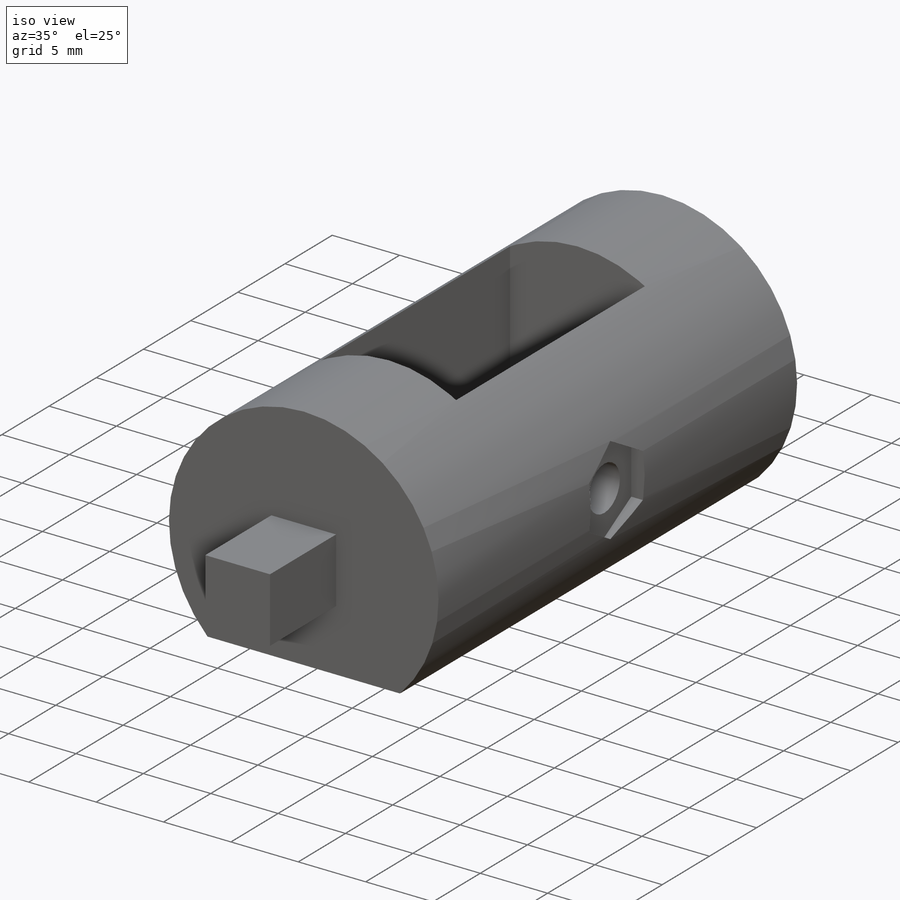
[diagram: iso view]
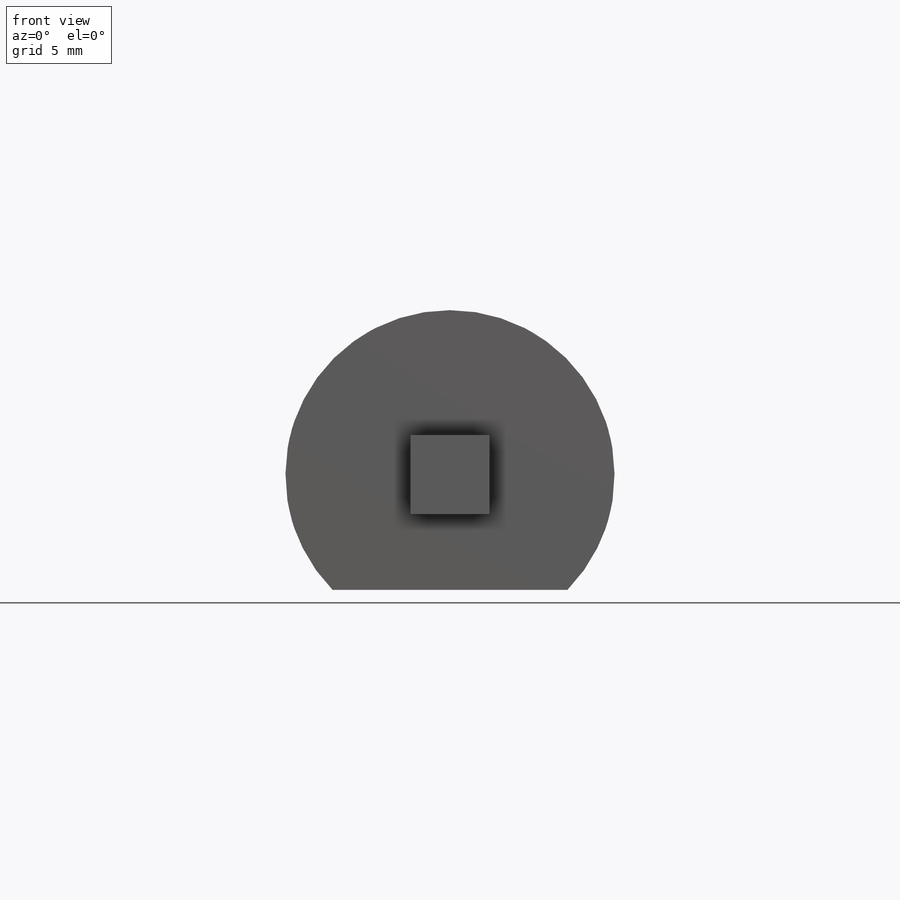
[diagram: front view]
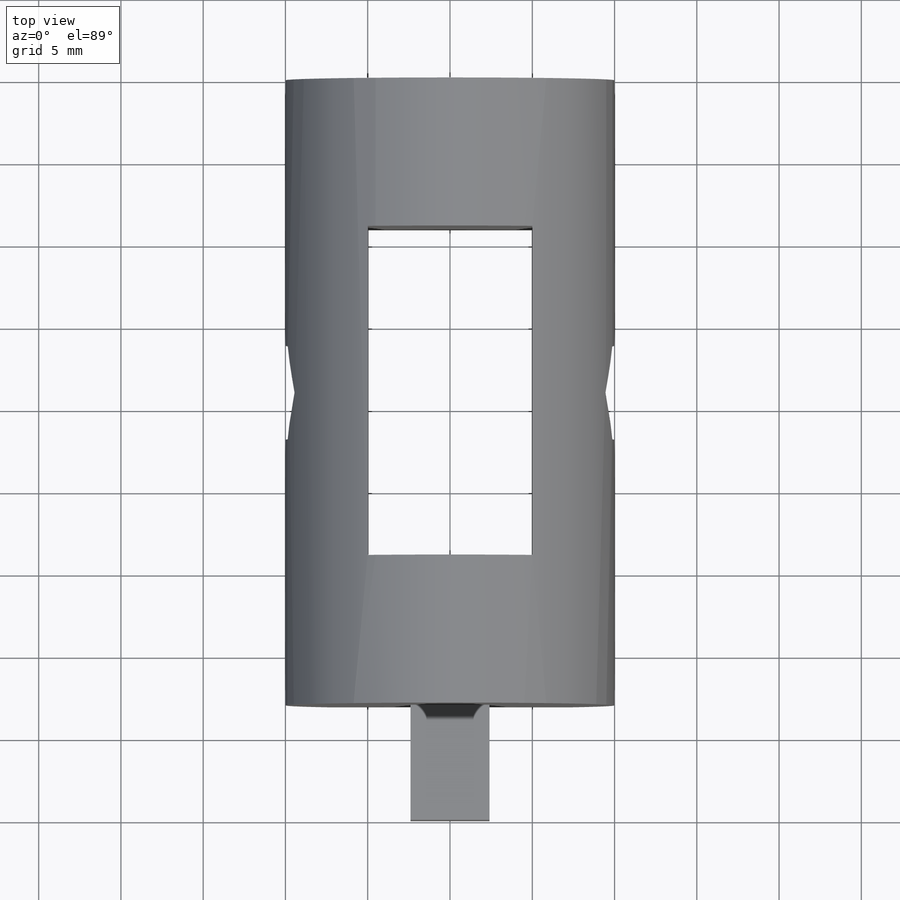
[diagram: top view]
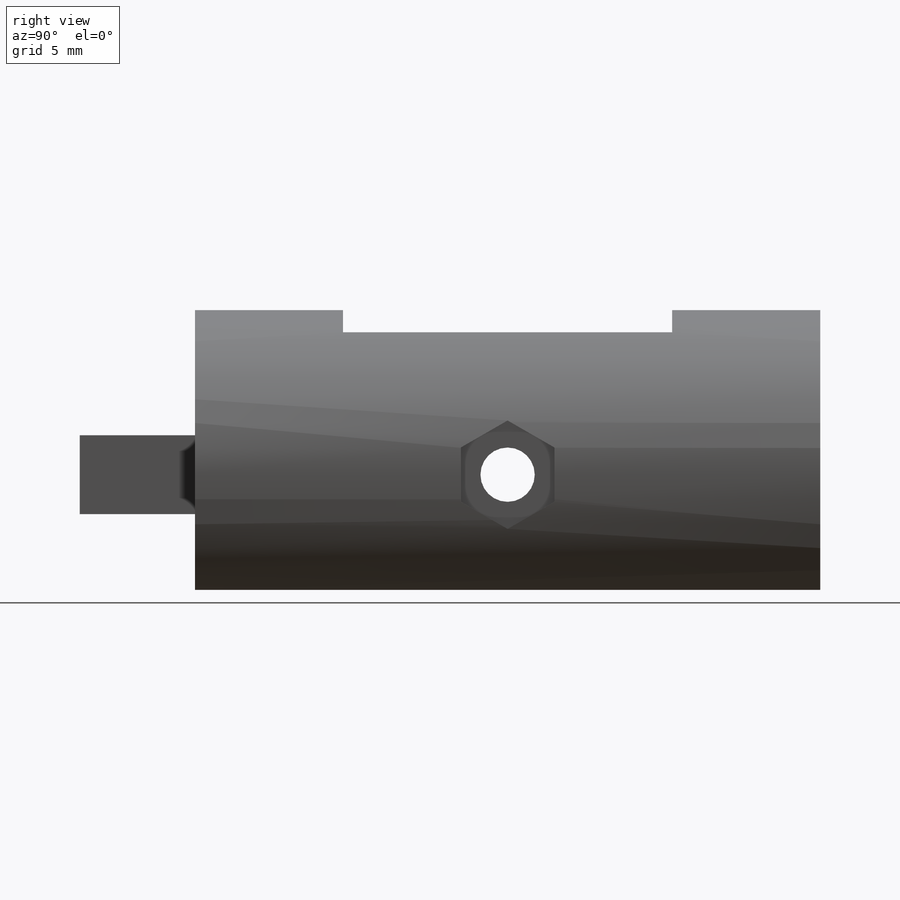
[diagram: right view]
SOLIDWORKS PART (.sldprt)
format: sldprt  version: not decoded by parser v0  size: 243,200 bytes
history: native  units: mm
features: sketch x8, cut_extrude x6, plane x3, extrude x2, material x1 (+9 scaffold rows collapsed)
feature tree (29):
  scaffold x9  (default folders/planes/origin — collapsed)
  material  "Material <nicht festgelegt>"
  plane  "Ebene vorne"
  plane  "Ebene oben"
  plane  "Ebene rechts"
  sketch  "Skizze1"  dims[D1=20.0mm]
  extrude  "Aufsatz-Linear austragen1"  Depth=38mm
  sketch  "Skizze2"  dims[c1.D1=4.8mm c1.D2=4.8mm c1.D3=2.4mm c1.D4=~2.726443mm c2.D3=4.8mm]
  extrude  "Aufsatz-Linear austragen2"  Depth=7mm
  sketch  "Skizze3"  dims[c1.D1=~1.643728mm c1.D2=5.3mm c2.D1=1.5mm c2.D2=~3.954796mm]
  cut_extrude  "Schnitt-Linear austragen1"  Depth=7mm
  sketch  "Skizze4"  dims[D1=10.0mm D2=10.0mm D3=7.0mm D4=7.0mm]
  cut_extrude  "Schnitt-Linear austragen3"  [1 undecoded]
  sketch  "Skizze5"  dims[D1=5.0mm D2=5.0mm D3=20.0mm D4=9.0mm D5=~14.282857mm]
  cut_extrude  "Schnitt-Linear austragen4"  [1 undecoded]
  sketch  "Skizze6"  dims[D1=3.3mm D2=10.0mm D3=19.0mm]
  cut_extrude  "Schnitt-Linear austragen5"  [1 undecoded]
  sketch  "Skizze7"  dims[D1=5.7mm]
  cut_extrude  "Schnitt-Linear austragen6"  Depth=4mm
  cut_extrude  "Schnitt-Linear austragen7"  [1 undecoded]
  sketch  "Skizze7<2>"  dims[D19=14.0mm]
decode coverage: 12 of 16 modeling features carry decoded parameters
note: ~ marks probable driven/reference dimensions
note: 4 parameter values undecoded
summary: no parameter record found for 4 features
note: suppression state not decoded; provenance and decode notes live in map.json
